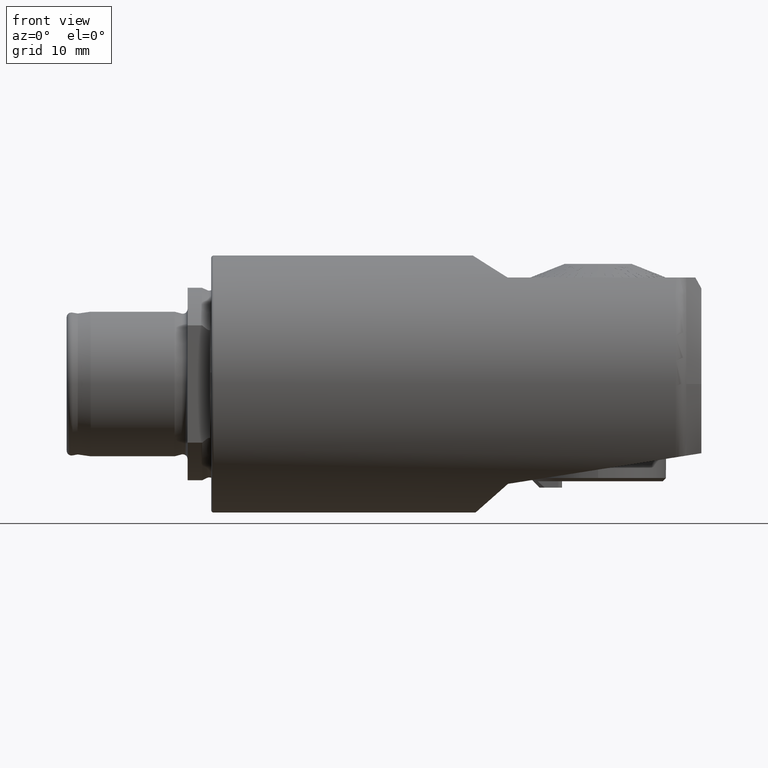
[diagram: clean part render]
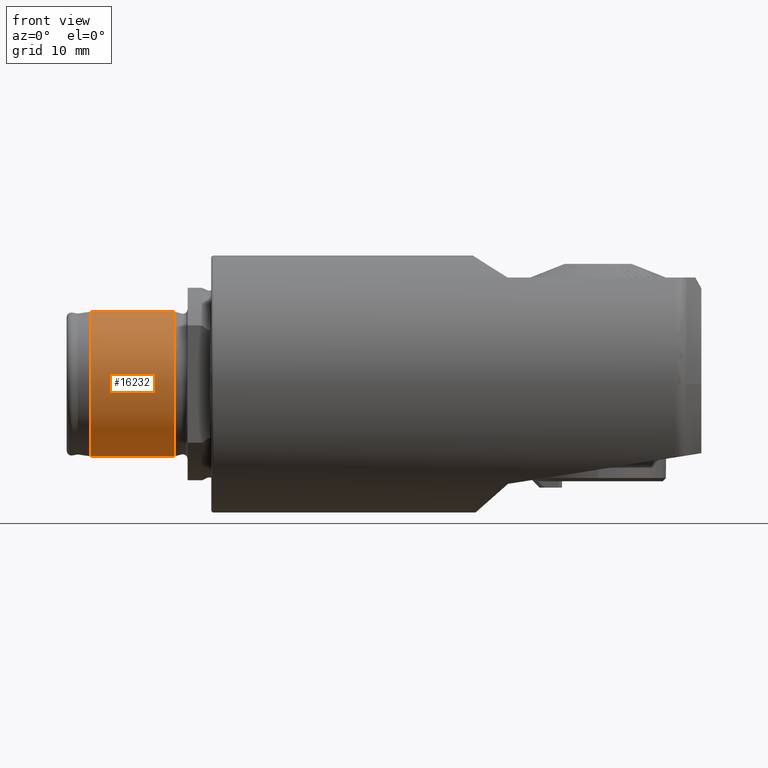
[diagram: same view with one face highlighted and labeled with its STEP entity id]
A machine part, front view. The second image highlights one B-rep face of the part: STEP entity #16232.
In plain terms, the highlighted cylindrical surface (partial cylindrical patch) has radius 9 mm, axis along (-1, -0, -0).
Its self-contained STEP definition (entity closure, byte-faithful):
#333 = AXIS2_PLACEMENT_3D ( 'NONE', #9202, #9200, #9198 ) ;
#6546 = EDGE_CURVE ( 'NONE', #21706, #12095, #13168, .T. ) ;
#6548 = EDGE_CURVE ( 'NONE', #12104, #16102, #13174, .T. ) ;
#9013 = ORIENTED_EDGE ( 'NONE', *, *, #11103, .F. ) ;
#9014 = ORIENTED_EDGE ( 'NONE', *, *, #6548, .T. ) ;
#9015 = ORIENTED_EDGE ( 'NONE', *, *, #11105, .T. ) ;
#9016 = ORIENTED_EDGE ( 'NONE', *, *, #6546, .F. ) ;
#9198 = DIRECTION ( 'NONE',  ( 0.0000000000000000000, 0.0000000000000000000, 1.000000000000000000 ) ) ;
#9200 = DIRECTION ( 'NONE',  ( -1.000000000000000000, -0.0000000000000000000, -0.0000000000000000000 ) ) ;
#9202 = CARTESIAN_POINT ( 'NONE',  ( -7.755547907243324000, 0.0000000000000000000, 0.0000000000000000000 ) ) ;
#10184 = CYLINDRICAL_SURFACE ( 'NONE', #333, 9.000000000000000000 ) ;
#10188 = FACE_OUTER_BOUND ( 'NONE', #16586, .T. ) ;
#11103 = EDGE_CURVE ( 'NONE', #12104, #21706, #13482, .T. ) ;
#11105 = EDGE_CURVE ( 'NONE', #16102, #12095, #13480, .T. ) ;
#11921 = CARTESIAN_POINT ( 'NONE',  ( 13.43799579955534000, 0.0000000000000000000, 9.000000000000000000 ) ) ;
#12095 = VERTEX_POINT ( 'NONE', #17781 ) ;
#12104 = VERTEX_POINT ( 'NONE', #17797 ) ;
#13168 = CIRCLE ( 'NONE', #21949, 9.000000000000000000 ) ;
#13174 = CIRCLE ( 'NONE', #21951, 9.000000000000000000 ) ;
#13480 = LINE ( 'NONE', #17527, #13486 ) ;
#13482 = LINE ( 'NONE', #17522, #13483 ) ;
#13483 = VECTOR ( 'NONE', #17524, 1000.000000000000000 ) ;
#13486 = VECTOR ( 'NONE', #17535, 1000.000000000000000 ) ;
#15322 = CARTESIAN_POINT ( 'NONE',  ( 2.999999999999999100, 0.0000000000000000000, -9.000000000000000000 ) ) ;
#16102 = VERTEX_POINT ( 'NONE', #11921 ) ;
#16232 = ADVANCED_FACE ( 'NONE', ( #10188 ), #10184, .T. ) ;
#16586 = EDGE_LOOP ( 'NONE', ( #9013, #9014, #9015, #9016 ) ) ;
#17522 = CARTESIAN_POINT ( 'NONE',  ( -7.755547907243324000, 1.102182119232617700E-015, -9.000000000000000000 ) ) ;
#17524 = DIRECTION ( 'NONE',  ( -1.000000000000000000, -0.0000000000000000000, -0.0000000000000000000 ) ) ;
#17527 = CARTESIAN_POINT ( 'NONE',  ( -7.755547907243324000, 0.0000000000000000000, 9.000000000000000000 ) ) ;
#17535 = DIRECTION ( 'NONE',  ( -1.000000000000000000, -0.0000000000000000000, -0.0000000000000000000 ) ) ;
#17781 = CARTESIAN_POINT ( 'NONE',  ( 2.999999999999999100, 1.102182119232617700E-015, 9.000000000000000000 ) ) ;
#17797 = CARTESIAN_POINT ( 'NONE',  ( 13.43799579955534000, 1.102182119232617700E-015, -9.000000000000000000 ) ) ;
#18770 = CARTESIAN_POINT ( 'NONE',  ( 2.999999999999999100, 0.0000000000000000000, 0.0000000000000000000 ) ) ;
#18771 = DIRECTION ( 'NONE',  ( -1.000000000000000000, -0.0000000000000000000, -0.0000000000000000000 ) ) ;
#18772 = DIRECTION ( 'NONE',  ( 0.0000000000000000000, 0.0000000000000000000, 1.000000000000000000 ) ) ;
#18774 = CARTESIAN_POINT ( 'NONE',  ( 13.43799579955534000, 0.0000000000000000000, 0.0000000000000000000 ) ) ;
#18775 = DIRECTION ( 'NONE',  ( -1.000000000000000000, -0.0000000000000000000, -0.0000000000000000000 ) ) ;
#18776 = DIRECTION ( 'NONE',  ( 0.0000000000000000000, 0.0000000000000000000, 1.000000000000000000 ) ) ;
#21706 = VERTEX_POINT ( 'NONE', #15322 ) ;
#21949 = AXIS2_PLACEMENT_3D ( 'NONE', #18770, #18771, #18772 ) ;
#21951 = AXIS2_PLACEMENT_3D ( 'NONE', #18774, #18775, #18776 ) ;